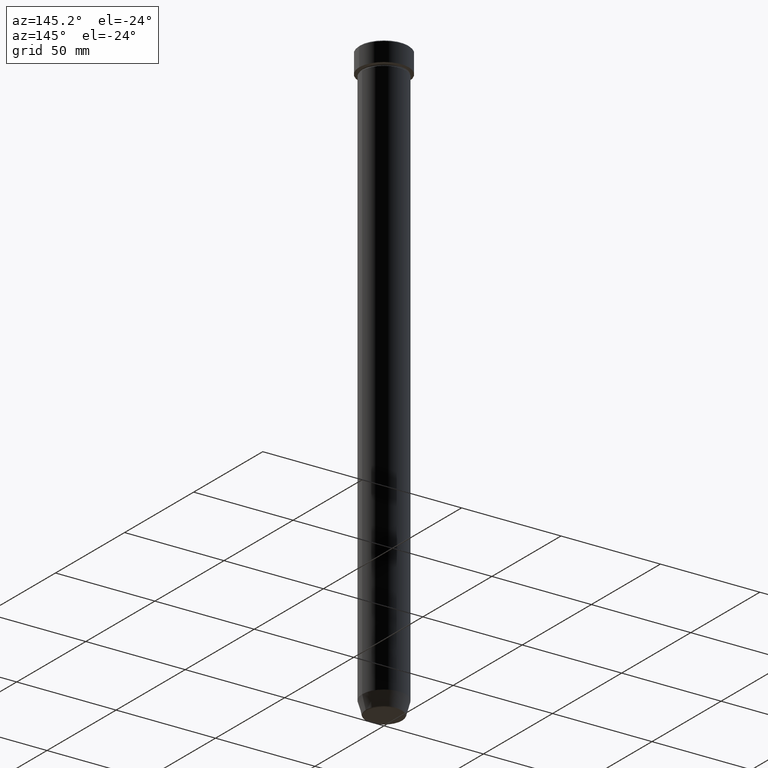
[diagram: clean part render]
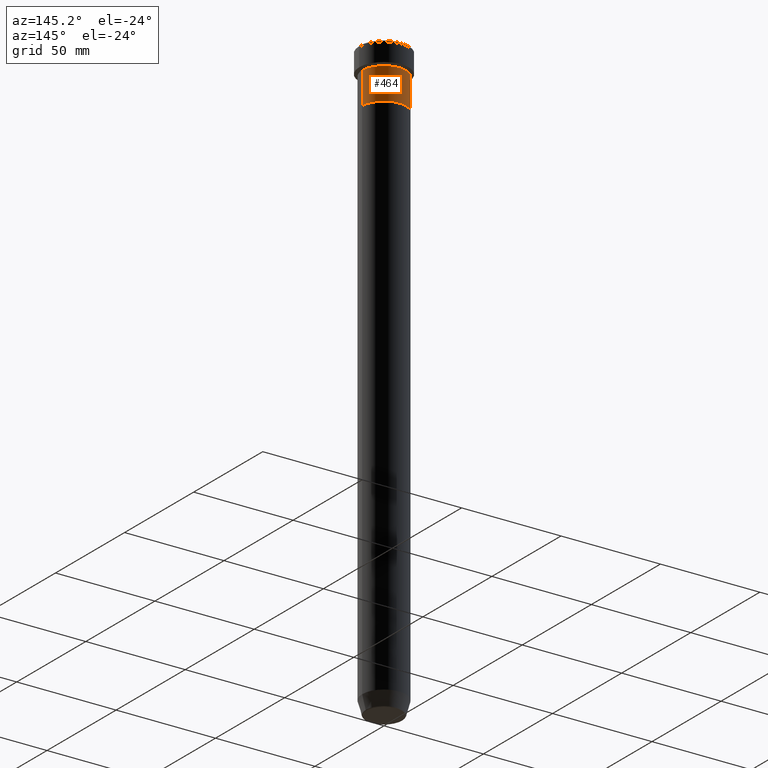
[diagram: same view with one face highlighted and labeled with its STEP entity id]
A machine part, auxiliary view. The second image highlights one B-rep face of the part: STEP entity #464.
In plain terms, the highlighted cylindrical surface (edge-blend (fillet) strip) has radius 11 mm, axis along (-0, -0, 1).
Its self-contained STEP definition (entity closure, byte-faithful):
#14 = CARTESIAN_POINT ( 'NONE',  ( -11.00000000000000000, 1.347111479062088405E-15, -11.00000000000000000 ) ) ;
#27 = ORIENTED_EDGE ( 'NONE', *, *, #319, .F. ) ;
#30 = ORIENTED_EDGE ( 'NONE', *, *, #54, .T. ) ;
#54 = EDGE_CURVE ( 'NONE', #208, #489, #365, .T. ) ;
#81 = EDGE_CURVE ( 'NONE', #177, #375, #596, .T. ) ;
#97 = AXIS2_PLACEMENT_3D ( 'NONE', #470, #433, #205 ) ;
#113 = DIRECTION ( 'NONE',  ( 1.000000000000000000, 0.000000000000000000, 0.000000000000000000 ) ) ;
#122 = AXIS2_PLACEMENT_3D ( 'NONE', #287, #384, #374 ) ;
#177 = VERTEX_POINT ( 'NONE', #210 ) ;
#191 = CARTESIAN_POINT ( 'NONE',  ( -11.00000000000000000, 1.347111479062088405E-15, 0.000000000000000000 ) ) ;
#205 = DIRECTION ( 'NONE',  ( 1.000000000000000000, 0.000000000000000000, 0.000000000000000000 ) ) ;
#208 = VERTEX_POINT ( 'NONE', #269 ) ;
#210 = CARTESIAN_POINT ( 'NONE',  ( 11.00000000000000000, 0.000000000000000000, -27.00000000000000000 ) ) ;
#215 = CIRCLE ( 'NONE', #351, 11.00000000000000000 ) ;
#239 = CARTESIAN_POINT ( 'NONE',  ( 0.000000000000000000, 0.000000000000000000, -11.00000000000000000 ) ) ;
#262 = EDGE_LOOP ( 'NONE', ( #418, #30, #27, #591 ) ) ;
#269 = CARTESIAN_POINT ( 'NONE',  ( -11.00000000000000000, 1.347111479062088405E-15, -27.00000000000000000 ) ) ;
#280 = CARTESIAN_POINT ( 'NONE',  ( 11.00000000000000000, 0.000000000000000000, -11.00000000000000000 ) ) ;
#287 = CARTESIAN_POINT ( 'NONE',  ( 0.000000000000000000, 0.000000000000000000, -27.00000000000000000 ) ) ;
#292 = CIRCLE ( 'NONE', #122, 11.00000000000000000 ) ;
#293 = EDGE_CURVE ( 'NONE', #177, #208, #292, .T. ) ;
#310 = DIRECTION ( 'NONE',  ( -0.000000000000000000, -0.000000000000000000, 1.000000000000000000 ) ) ;
#319 = EDGE_CURVE ( 'NONE', #375, #489, #215, .T. ) ;
#320 = CYLINDRICAL_SURFACE ( 'NONE', #97, 11.00000000000000000 ) ;
#322 = CARTESIAN_POINT ( 'NONE',  ( 11.00000000000000000, 0.000000000000000000, 0.000000000000000000 ) ) ;
#351 = AXIS2_PLACEMENT_3D ( 'NONE', #239, #483, #113 ) ;
#365 = LINE ( 'NONE', #191, #429 ) ;
#374 = DIRECTION ( 'NONE',  ( 1.000000000000000000, 0.000000000000000000, 0.000000000000000000 ) ) ;
#375 = VERTEX_POINT ( 'NONE', #280 ) ;
#384 = DIRECTION ( 'NONE',  ( -0.000000000000000000, -0.000000000000000000, 1.000000000000000000 ) ) ;
#418 = ORIENTED_EDGE ( 'NONE', *, *, #293, .T. ) ;
#429 = VECTOR ( 'NONE', #559, 1000.000000000000000 ) ;
#433 = DIRECTION ( 'NONE',  ( -0.000000000000000000, -0.000000000000000000, 1.000000000000000000 ) ) ;
#457 = FACE_OUTER_BOUND ( 'NONE', #262, .T. ) ;
#464 = ADVANCED_FACE ( 'NONE', ( #457 ), #320, .T. ) ;
#470 = CARTESIAN_POINT ( 'NONE',  ( 0.000000000000000000, 0.000000000000000000, 0.000000000000000000 ) ) ;
#472 = VECTOR ( 'NONE', #310, 1000.000000000000000 ) ;
#483 = DIRECTION ( 'NONE',  ( -0.000000000000000000, -0.000000000000000000, 1.000000000000000000 ) ) ;
#489 = VERTEX_POINT ( 'NONE', #14 ) ;
#559 = DIRECTION ( 'NONE',  ( -0.000000000000000000, -0.000000000000000000, 1.000000000000000000 ) ) ;
#591 = ORIENTED_EDGE ( 'NONE', *, *, #81, .F. ) ;
#596 = LINE ( 'NONE', #322, #472 ) ;